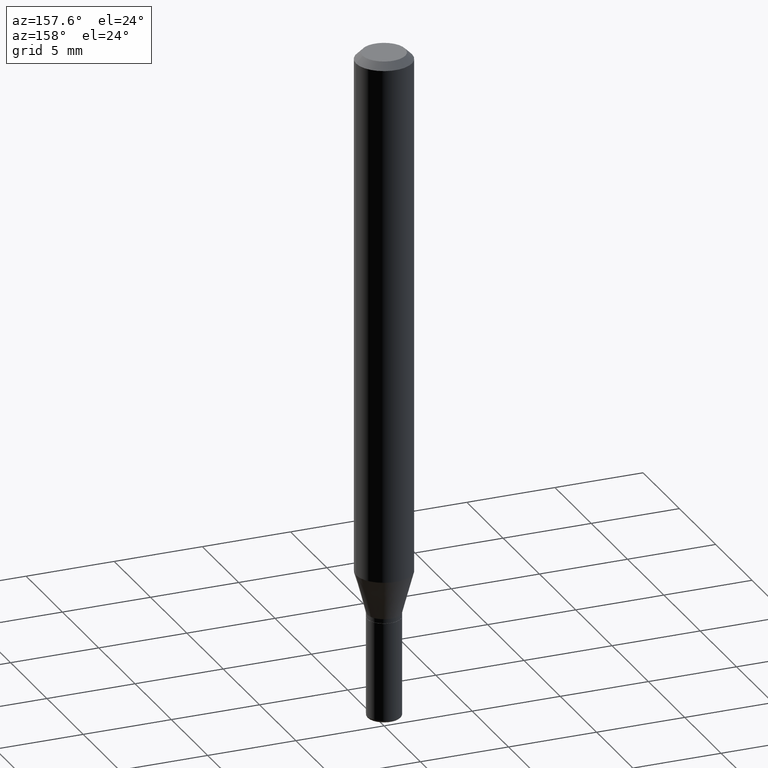
[diagram: clean part render]
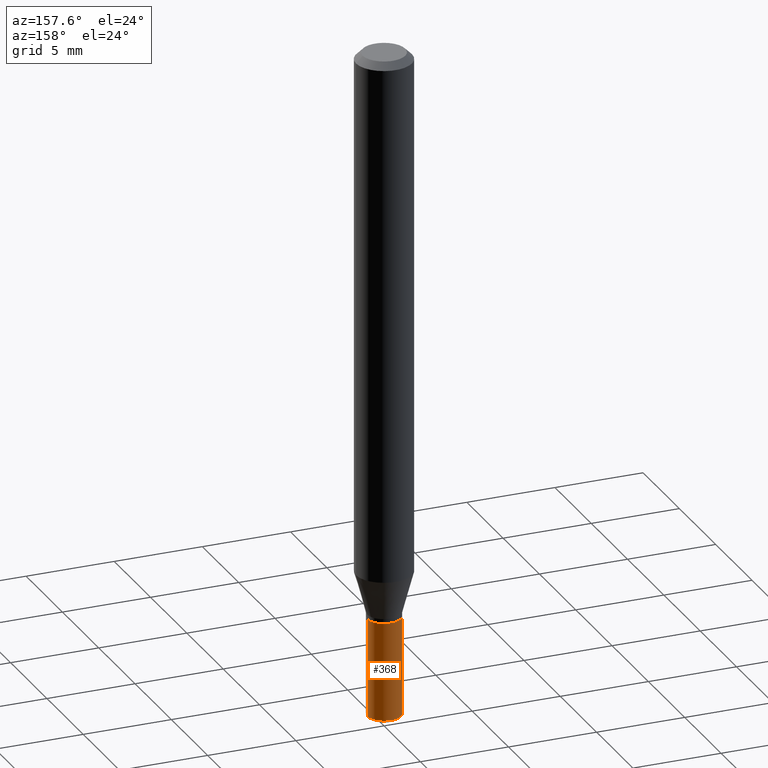
[diagram: same view with one face highlighted and labeled with its STEP entity id]
A machine part, auxiliary view. The second image highlights one B-rep face of the part: STEP entity #368.
In plain terms, the highlighted cylindrical surface (edge-blend (fillet) strip) has radius 0.9525 mm, axis along (-0, 0, 1).
Its self-contained STEP definition (entity closure, byte-faithful):
#22 = VERTEX_POINT ( 'NONE', #44 ) ;
#23 = DIRECTION ( 'NONE',  ( 1.000000000000000000, -6.982962677686261189E-15, 0.000000000000000000 ) ) ;
#30 = CARTESIAN_POINT ( 'NONE',  ( 0.03750000000000008882, -2.618611004132355933E-16, 1.828566290923480126E-30 ) ) ;
#44 = CARTESIAN_POINT ( 'NONE',  ( 0.03749999999999999861, -4.713499807438246596E-15, -1.275000000000000133 ) ) ;
#47 = EDGE_CURVE ( 'NONE', #94, #72, #158, .T. ) ;
#49 = AXIS2_PLACEMENT_3D ( 'NONE', #208, #362, #104 ) ;
#72 = VERTEX_POINT ( 'NONE', #359 ) ;
#75 = VECTOR ( 'NONE', #349, 39.37007874015748143 ) ;
#94 = VERTEX_POINT ( 'NONE', #271 ) ;
#104 = DIRECTION ( 'NONE',  ( 1.000000000000000000, -6.982962677686268288E-15, 0.000000000000000000 ) ) ;
#111 = AXIS2_PLACEMENT_3D ( 'NONE', #335, #495, #23 ) ;
#116 = CARTESIAN_POINT ( 'NONE',  ( 0.000000000000000000, 0.000000000000000000, 0.000000000000000000 ) ) ;
#124 = CYLINDRICAL_SURFACE ( 'NONE', #386, 0.03750000000000008882 ) ;
#127 = ORIENTED_EDGE ( 'NONE', *, *, #47, .T. ) ;
#158 = CIRCLE ( 'NONE', #111, 0.03750000000000017902 ) ;
#170 = ORIENTED_EDGE ( 'NONE', *, *, #301, .F. ) ;
#176 = VERTEX_POINT ( 'NONE', #350 ) ;
#193 = LINE ( 'NONE', #352, #344 ) ;
#208 = CARTESIAN_POINT ( 'NONE',  ( 3.117972727886049049E-29, -4.451638707025011594E-15, -1.275000000000000133 ) ) ;
#219 = EDGE_CURVE ( 'NONE', #22, #176, #296, .T. ) ;
#254 = EDGE_LOOP ( 'NONE', ( #127, #376, #518, #170 ) ) ;
#271 = CARTESIAN_POINT ( 'NONE',  ( 0.03750000000000017902, -5.481625701983738143E-15, -1.494999999999999662 ) ) ;
#296 = CIRCLE ( 'NONE', #49, 0.03749999999999999861 ) ;
#301 = EDGE_CURVE ( 'NONE', #94, #22, #390, .T. ) ;
#311 = DIRECTION ( 'NONE',  ( -2.445468806185136877E-29, 3.491481338843145188E-15, 1.000000000000000000 ) ) ;
#323 = EDGE_CURVE ( 'NONE', #72, #176, #193, .T. ) ;
#335 = CARTESIAN_POINT ( 'NONE',  ( 3.655975865246778562E-29, -5.219764601570502352E-15, -1.494999999999999662 ) ) ;
#344 = VECTOR ( 'NONE', #311, 39.37007874015748143 ) ;
#349 = DIRECTION ( 'NONE',  ( -2.445468806185136877E-29, 3.491481338843145188E-15, 1.000000000000000000 ) ) ;
#350 = CARTESIAN_POINT ( 'NONE',  ( -0.03749999999999999861, -4.569248128387718378E-15, -1.275000000000000133 ) ) ;
#352 = CARTESIAN_POINT ( 'NONE',  ( -0.03750000000000008882, 2.664535259100382008E-16, -1.844600658845594012E-30 ) ) ;
#359 = CARTESIAN_POINT ( 'NONE',  ( -0.03750000000000017902, -4.569248128387716800E-15, -1.494999999999999662 ) ) ;
#362 = DIRECTION ( 'NONE',  ( -2.445468806185136597E-29, 3.491481338843145583E-15, 1.000000000000000000 ) ) ;
#368 = ADVANCED_FACE ( 'NONE', ( #408 ), #124, .T. ) ;
#376 = ORIENTED_EDGE ( 'NONE', *, *, #323, .T. ) ;
#386 = AXIS2_PLACEMENT_3D ( 'NONE', #116, #483, #445 ) ;
#390 = LINE ( 'NONE', #30, #75 ) ;
#408 = FACE_OUTER_BOUND ( 'NONE', #254, .T. ) ;
#445 = DIRECTION ( 'NONE',  ( 1.000000000000000000, -6.982962677686265922E-15, 4.876176775795935232E-29 ) ) ;
#483 = DIRECTION ( 'NONE',  ( -2.445468806185136597E-29, 3.491481338843145583E-15, 1.000000000000000000 ) ) ;
#495 = DIRECTION ( 'NONE',  ( -2.445468806185136597E-29, 3.491481338843145583E-15, 1.000000000000000000 ) ) ;
#518 = ORIENTED_EDGE ( 'NONE', *, *, #219, .F. ) ;